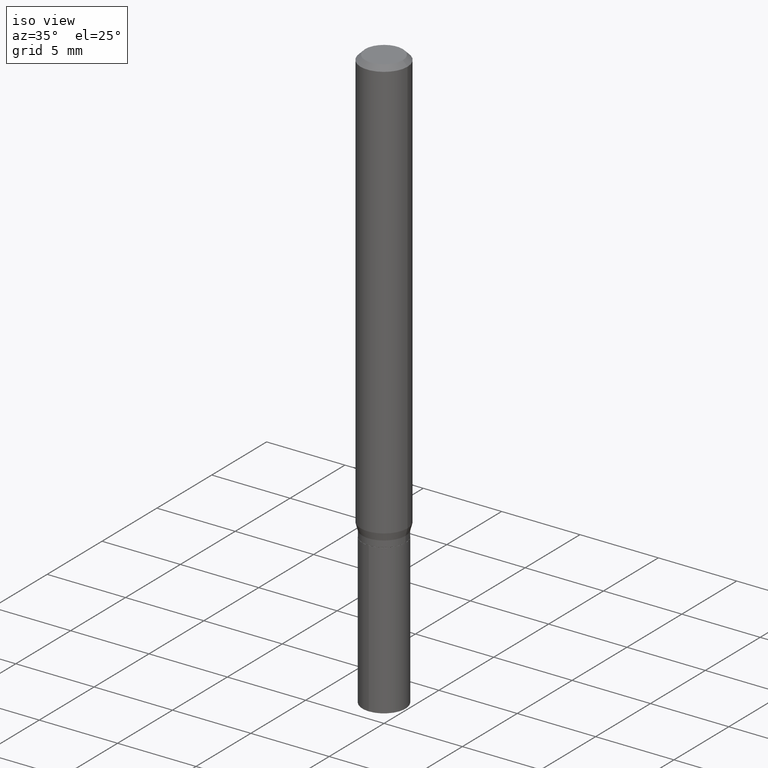
[diagram: clean part render]
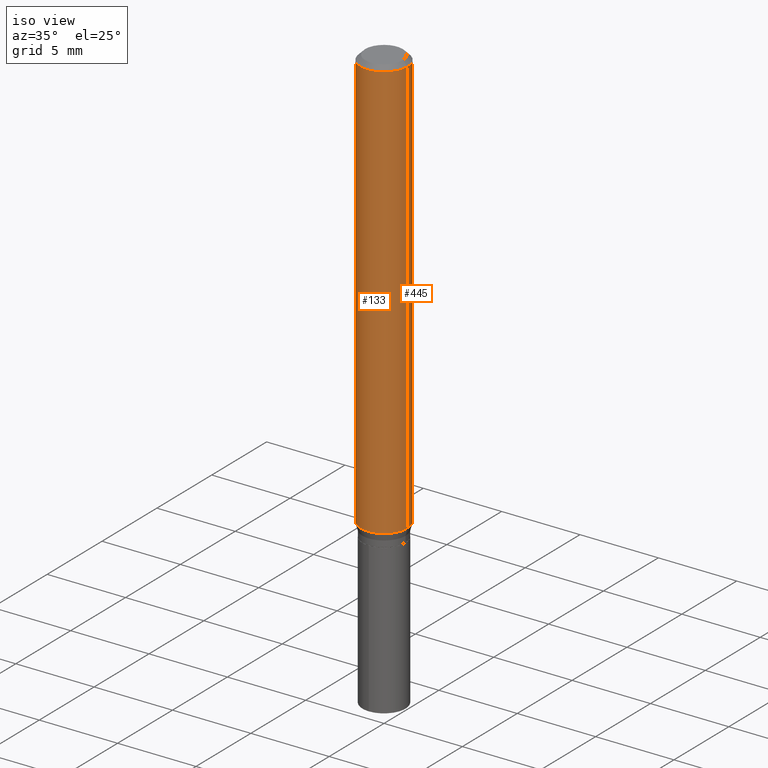
[diagram: same view with one multi-face feature highlighted, each face labeled with its STEP entity id]
A machine part, iso view. The highlighted faces form ONE feature: a constant-radius fillet chain: 2 tangent blend faces with common blend radius 1.4999 mm. The faces share edges in the B-rep.
Their STEP definitions:
[1] entity #133 (Cylinder):
#8 = DIRECTION ( 'NONE',  ( 1.000000000000000000, -6.982962677686266711E-15, 0.000000000000000000 ) ) ;
#16 = CIRCLE ( 'NONE', #116, 0.05904999999999999832 ) ;
#26 = EDGE_CURVE ( 'NONE', #172, #286, #216, .T. ) ;
#27 = ORIENTED_EDGE ( 'NONE', *, *, #46, .F. ) ;
#43 = EDGE_CURVE ( 'NONE', #278, #172, #375, .T. ) ;
#46 = EDGE_CURVE ( 'NONE', #233, #286, #16, .T. ) ;
#66 = ORIENTED_EDGE ( 'NONE', *, *, #26, .T. ) ;
#73 = CARTESIAN_POINT ( 'NONE',  ( 0.000000000000000000, 0.000000000000000000, 0.000000000000000000 ) ) ;
#96 = DIRECTION ( 'NONE',  ( -2.445468806185136877E-29, 3.491481338843145188E-15, 1.000000000000000000 ) ) ;
#116 = AXIS2_PLACEMENT_3D ( 'NONE', #257, #450, #8 ) ;
#133 = ADVANCED_FACE ( 'NONE', ( #381 ), #490, .T. ) ;
#140 = LINE ( 'NONE', #168, #422 ) ;
#143 = CARTESIAN_POINT ( 'NONE',  ( 0.05905000000000006771, -4.123439461173745257E-16, 2.879382386107503723E-30 ) ) ;
#160 = CARTESIAN_POINT ( 'NONE',  ( 0.05904999999999999832, -4.535783407291118600E-16, -0.01181000000000007044 ) ) ;
#161 = AXIS2_PLACEMENT_3D ( 'NONE', #73, #301, #226 ) ;
#168 = CARTESIAN_POINT ( 'NONE',  ( -0.05905000000000006771, 4.195754854663396409E-16, -2.904631170795525045E-30 ) ) ;
#172 = VERTEX_POINT ( 'NONE', #344 ) ;
#204 = VECTOR ( 'NONE', #415, 39.37007874015748143 ) ;
#216 = LINE ( 'NONE', #143, #204 ) ;
#226 = DIRECTION ( 'NONE',  ( 1.000000000000000000, -6.982962677686266711E-15, 4.876176775795936353E-29 ) ) ;
#233 = VERTEX_POINT ( 'NONE', #461 ) ;
#237 = ORIENTED_EDGE ( 'NONE', *, *, #416, .F. ) ;
#257 = CARTESIAN_POINT ( 'NONE',  ( 2.888098660104663766E-31, -4.123439461173779647E-17, -0.01181000000000007044 ) ) ;
#278 = VERTEX_POINT ( 'NONE', #392 ) ;
#286 = VERTEX_POINT ( 'NONE', #160 ) ;
#301 = DIRECTION ( 'NONE',  ( -2.445468806185136597E-29, 3.491481338843145583E-15, 1.000000000000000000 ) ) ;
#342 = DIRECTION ( 'NONE',  ( 1.000000000000000000, -6.982962677686265133E-15, 0.000000000000000000 ) ) ;
#344 = CARTESIAN_POINT ( 'NONE',  ( 0.05905000000000013016, -4.113359383615755359E-15, -1.060012951042911933 ) ) ;
#348 = EDGE_LOOP ( 'NONE', ( #237, #363, #66, #27 ) ) ;
#363 = ORIENTED_EDGE ( 'NONE', *, *, #43, .T. ) ;
#375 = CIRCLE ( 'NONE', #464, 0.05905000000000013016 ) ;
#381 = FACE_OUTER_BOUND ( 'NONE', #348, .T. ) ;
#392 = CARTESIAN_POINT ( 'NONE',  ( -0.05905000000000013016, -3.281439952032039762E-15, -1.060012951042911933 ) ) ;
#411 = DIRECTION ( 'NONE',  ( -2.445468806185136597E-29, 3.491481338843145583E-15, 1.000000000000000000 ) ) ;
#414 = CARTESIAN_POINT ( 'NONE',  ( 2.592228605927693875E-29, -3.701015437498380438E-15, -1.060012951042911933 ) ) ;
#415 = DIRECTION ( 'NONE',  ( -2.445468806185136877E-29, 3.491481338843145188E-15, 1.000000000000000000 ) ) ;
#416 = EDGE_CURVE ( 'NONE', #278, #233, #140, .T. ) ;
#422 = VECTOR ( 'NONE', #96, 39.37007874015748143 ) ;
#450 = DIRECTION ( 'NONE',  ( -2.445468806185136597E-29, 3.491481338843145583E-15, 1.000000000000000000 ) ) ;
#461 = CARTESIAN_POINT ( 'NONE',  ( -0.05904999999999999832, -1.451549430588718604E-15, -0.01181000000000007044 ) ) ;
#464 = AXIS2_PLACEMENT_3D ( 'NONE', #414, #411, #342 ) ;
#490 = CYLINDRICAL_SURFACE ( 'NONE', #161, 0.05905000000000006771 ) ;
[2] entity #445 (Cylinder):
#23 = CYLINDRICAL_SURFACE ( 'NONE', #41, 0.05905000000000006771 ) ;
#26 = EDGE_CURVE ( 'NONE', #172, #286, #216, .T. ) ;
#41 = AXIS2_PLACEMENT_3D ( 'NONE', #213, #90, #211 ) ;
#61 = ORIENTED_EDGE ( 'NONE', *, *, #416, .T. ) ;
#64 = FACE_OUTER_BOUND ( 'NONE', #209, .T. ) ;
#75 = CIRCLE ( 'NONE', #202, 0.05904999999999999832 ) ;
#85 = CARTESIAN_POINT ( 'NONE',  ( 2.592228605927693875E-29, -3.701015437498380438E-15, -1.060012951042911933 ) ) ;
#90 = DIRECTION ( 'NONE',  ( -2.445468806185136597E-29, 3.491481338843145583E-15, 1.000000000000000000 ) ) ;
#96 = DIRECTION ( 'NONE',  ( -2.445468806185136877E-29, 3.491481338843145188E-15, 1.000000000000000000 ) ) ;
#102 = ORIENTED_EDGE ( 'NONE', *, *, #336, .F. ) ;
#140 = LINE ( 'NONE', #168, #422 ) ;
#141 = ORIENTED_EDGE ( 'NONE', *, *, #26, .F. ) ;
#143 = CARTESIAN_POINT ( 'NONE',  ( 0.05905000000000006771, -4.123439461173745257E-16, 2.879382386107503723E-30 ) ) ;
#160 = CARTESIAN_POINT ( 'NONE',  ( 0.05904999999999999832, -4.535783407291118600E-16, -0.01181000000000007044 ) ) ;
#162 = DIRECTION ( 'NONE',  ( -2.445468806185136597E-29, 3.491481338843145583E-15, 1.000000000000000000 ) ) ;
#164 = DIRECTION ( 'NONE',  ( 1.000000000000000000, -6.982962677686265133E-15, 0.000000000000000000 ) ) ;
#168 = CARTESIAN_POINT ( 'NONE',  ( -0.05905000000000006771, 4.195754854663396409E-16, -2.904631170795525045E-30 ) ) ;
#172 = VERTEX_POINT ( 'NONE', #344 ) ;
#187 = EDGE_CURVE ( 'NONE', #172, #278, #412, .T. ) ;
#202 = AXIS2_PLACEMENT_3D ( 'NONE', #430, #384, #232 ) ;
#204 = VECTOR ( 'NONE', #415, 39.37007874015748143 ) ;
#209 = EDGE_LOOP ( 'NONE', ( #350, #61, #102, #141 ) ) ;
#211 = DIRECTION ( 'NONE',  ( 1.000000000000000000, -6.982962677686266711E-15, 4.876176775795936353E-29 ) ) ;
#213 = CARTESIAN_POINT ( 'NONE',  ( 0.000000000000000000, 0.000000000000000000, 0.000000000000000000 ) ) ;
#216 = LINE ( 'NONE', #143, #204 ) ;
#232 = DIRECTION ( 'NONE',  ( 1.000000000000000000, -6.982962677686266711E-15, 0.000000000000000000 ) ) ;
#233 = VERTEX_POINT ( 'NONE', #461 ) ;
#278 = VERTEX_POINT ( 'NONE', #392 ) ;
#286 = VERTEX_POINT ( 'NONE', #160 ) ;
#336 = EDGE_CURVE ( 'NONE', #286, #233, #75, .T. ) ;
#344 = CARTESIAN_POINT ( 'NONE',  ( 0.05905000000000013016, -4.113359383615755359E-15, -1.060012951042911933 ) ) ;
#350 = ORIENTED_EDGE ( 'NONE', *, *, #187, .T. ) ;
#384 = DIRECTION ( 'NONE',  ( -2.445468806185136597E-29, 3.491481338843145583E-15, 1.000000000000000000 ) ) ;
#392 = CARTESIAN_POINT ( 'NONE',  ( -0.05905000000000013016, -3.281439952032039762E-15, -1.060012951042911933 ) ) ;
#412 = CIRCLE ( 'NONE', #413, 0.05905000000000013016 ) ;
#413 = AXIS2_PLACEMENT_3D ( 'NONE', #85, #162, #164 ) ;
#415 = DIRECTION ( 'NONE',  ( -2.445468806185136877E-29, 3.491481338843145188E-15, 1.000000000000000000 ) ) ;
#416 = EDGE_CURVE ( 'NONE', #278, #233, #140, .T. ) ;
#422 = VECTOR ( 'NONE', #96, 39.37007874015748143 ) ;
#430 = CARTESIAN_POINT ( 'NONE',  ( 2.888098660104663766E-31, -4.123439461173779647E-17, -0.01181000000000007044 ) ) ;
#445 = ADVANCED_FACE ( 'NONE', ( #64 ), #23, .T. ) ;
#461 = CARTESIAN_POINT ( 'NONE',  ( -0.05904999999999999832, -1.451549430588718604E-15, -0.01181000000000007044 ) ) ;